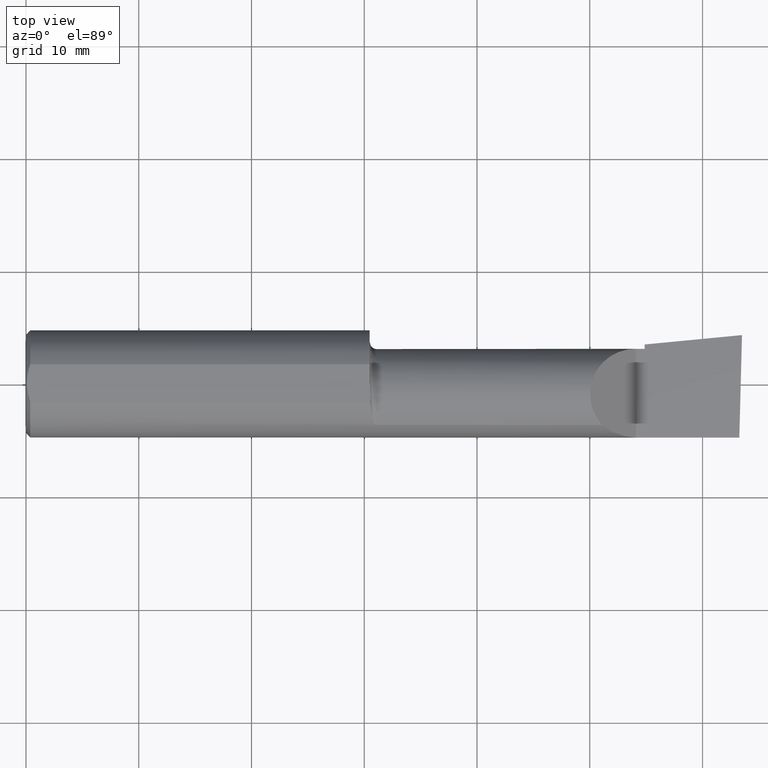
[diagram: clean part render]
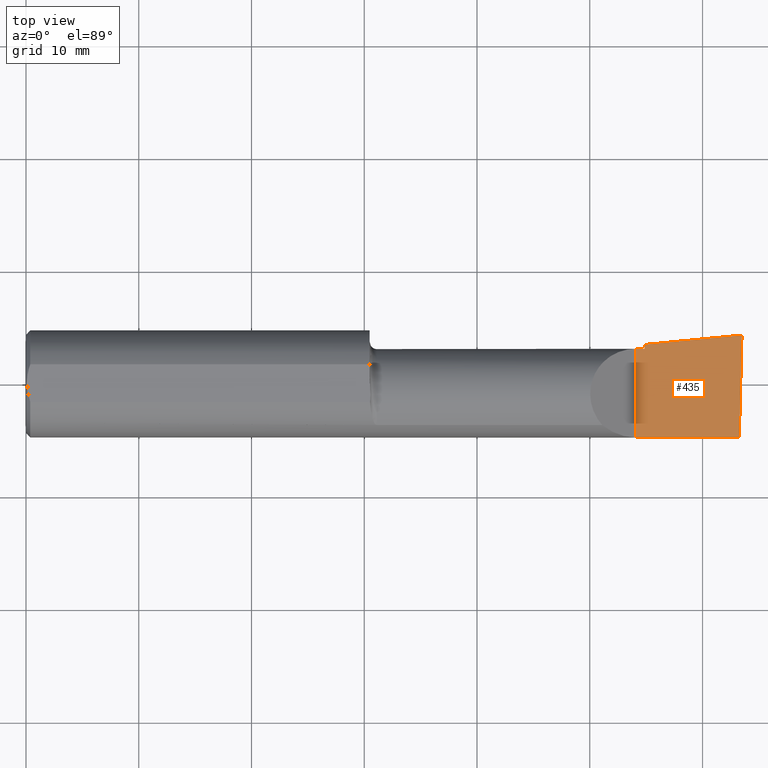
[diagram: same view with one face highlighted and labeled with its STEP entity id]
A machine part, top view. The second image highlights one B-rep face of the part: STEP entity #435.
In plain terms, the highlighted planar face has unit normal (-0, 0, -1).
Its self-contained STEP definition (entity closure, byte-faithful):
#12 = VERTEX_POINT ( 'NONE', #396 ) ;
#18 = EDGE_CURVE ( 'NONE', #114, #513, #243, .T. ) ;
#32 = ORIENTED_EDGE ( 'NONE', *, *, #385, .F. ) ;
#38 = CARTESIAN_POINT ( 'NONE',  ( 1.093080678464946361E-18, 0.1226499999999998841, 3.267291166268304703E-16 ) ) ;
#46 = CARTESIAN_POINT ( 'NONE',  ( 2.500000000000000000, -0.2500000000000000555, 6.829619984160658046E-17 ) ) ;
#50 = LINE ( 'NONE', #301, #104 ) ;
#54 = VECTOR ( 'NONE', #203, 39.37007874015748143 ) ;
#74 = CARTESIAN_POINT ( 'NONE',  ( 2.129999999999999893, 0.1226499999999998147, 1.065442715258197396E-16 ) ) ;
#81 = EDGE_CURVE ( 'NONE', #337, #12, #102, .T. ) ;
#102 = LINE ( 'NONE', #298, #530 ) ;
#104 = VECTOR ( 'NONE', #244, 39.37007874015748143 ) ;
#114 = VERTEX_POINT ( 'NONE', #607 ) ;
#136 = VECTOR ( 'NONE', #242, 39.37007874015748854 ) ;
#144 = ORIENTED_EDGE ( 'NONE', *, *, #345, .T. ) ;
#162 = EDGE_CURVE ( 'NONE', #186, #114, #358, .T. ) ;
#175 = DIRECTION ( 'NONE',  ( 1.000000000000000000, -6.829619984160658046E-18, 0.000000000000000000 ) ) ;
#186 = VERTEX_POINT ( 'NONE', #321 ) ;
#187 = VECTOR ( 'NONE', #175, 39.37007874015748143 ) ;
#203 = DIRECTION ( 'NONE',  ( -0.000000000000000000, 1.000000000000000000, -0.000000000000000000 ) ) ;
#226 = LINE ( 'NONE', #38, #187 ) ;
#242 = DIRECTION ( 'NONE',  ( 0.02617694830791474428, 0.9996573249755561497, -2.665804247648019634E-18 ) ) ;
#243 = LINE ( 'NONE', #543, #54 ) ;
#244 = DIRECTION ( 'NONE',  ( 6.829619984160658816E-18, 1.000000000000000000, -7.059994452165177242E-34 ) ) ;
#255 = CARTESIAN_POINT ( 'NONE',  ( 2.160000000000000142, 0.1226499999999999674, 3.267291166268307168E-16 ) ) ;
#270 = ORIENTED_EDGE ( 'NONE', *, *, #162, .F. ) ;
#298 = CARTESIAN_POINT ( 'NONE',  ( 0.3393181374772696324, -0.03739999999999998881, 2.916527262322783071E-16 ) ) ;
#301 = CARTESIAN_POINT ( 'NONE',  ( 2.160000000000000142, -0.2500000000000000555, 1.034430765243970311E-16 ) ) ;
#303 = PLANE ( 'NONE',  #633 ) ;
#305 = EDGE_CURVE ( 'NONE', #513, #516, #226, .T. ) ;
#321 = CARTESIAN_POINT ( 'NONE',  ( 2.490625440078237940, -0.1873499999999999888, 6.926778495256700803E-17 ) ) ;
#332 = EDGE_LOOP ( 'NONE', ( #270, #144, #559, #32, #579, #426 ) ) ;
#337 = VERTEX_POINT ( 'NONE', #631 ) ;
#345 = EDGE_CURVE ( 'NONE', #186, #12, #439, .T. ) ;
#358 = LINE ( 'NONE', #512, #362 ) ;
#362 = VECTOR ( 'NONE', #462, 39.37007874015748143 ) ;
#385 = EDGE_CURVE ( 'NONE', #516, #337, #50, .T. ) ;
#387 = DIRECTION ( 'NONE',  ( -1.000000000000000000, 0.000000000000000000, 1.033731667140896077E-16 ) ) ;
#396 = CARTESIAN_POINT ( 'NONE',  ( 2.500000000000034195, 0.1706500000000318318, 9.292204874308774392E-14 ) ) ;
#426 = ORIENTED_EDGE ( 'NONE', *, *, #18, .F. ) ;
#435 = ADVANCED_FACE ( 'NONE', ( #538 ), #303, .F. ) ;
#439 = LINE ( 'NONE', #544, #136 ) ;
#460 = DIRECTION ( 'NONE',  ( 0.9953961983671787417, 0.09584575252022459191, -1.028972571603813720E-16 ) ) ;
#462 = DIRECTION ( 'NONE',  ( -1.000000000000000000, -0.000000000000000000, -0.000000000000000000 ) ) ;
#512 = CARTESIAN_POINT ( 'NONE',  ( 3.377502344341257155E-32, -0.1873499999999999610, 3.267291166268304703E-16 ) ) ;
#513 = VERTEX_POINT ( 'NONE', #74 ) ;
#516 = VERTEX_POINT ( 'NONE', #255 ) ;
#530 = VECTOR ( 'NONE', #460, 39.37007874015748143 ) ;
#538 = FACE_OUTER_BOUND ( 'NONE', #332, .T. ) ;
#543 = CARTESIAN_POINT ( 'NONE',  ( 2.129999999999999893, -0.2500000000000000555, 1.065442715258197396E-16 ) ) ;
#544 = CARTESIAN_POINT ( 'NONE',  ( 2.488992440003207296, -0.2497117568972554158, 6.943408617627041469E-17 ) ) ;
#559 = ORIENTED_EDGE ( 'NONE', *, *, #81, .F. ) ;
#579 = ORIENTED_EDGE ( 'NONE', *, *, #305, .F. ) ;
#607 = CARTESIAN_POINT ( 'NONE',  ( 2.129999999999999893, -0.1873499999999999888, 1.065442715258197396E-16 ) ) ;
#631 = CARTESIAN_POINT ( 'NONE',  ( 2.160000000000000142, 0.1379117236128417356, 3.286754617377316716E-16 ) ) ;
#633 = AXIS2_PLACEMENT_3D ( 'NONE', #46, #636, #387 ) ;
#636 = DIRECTION ( 'NONE',  ( -1.033731667140896077E-16, 0.000000000000000000, -1.000000000000000000 ) ) ;